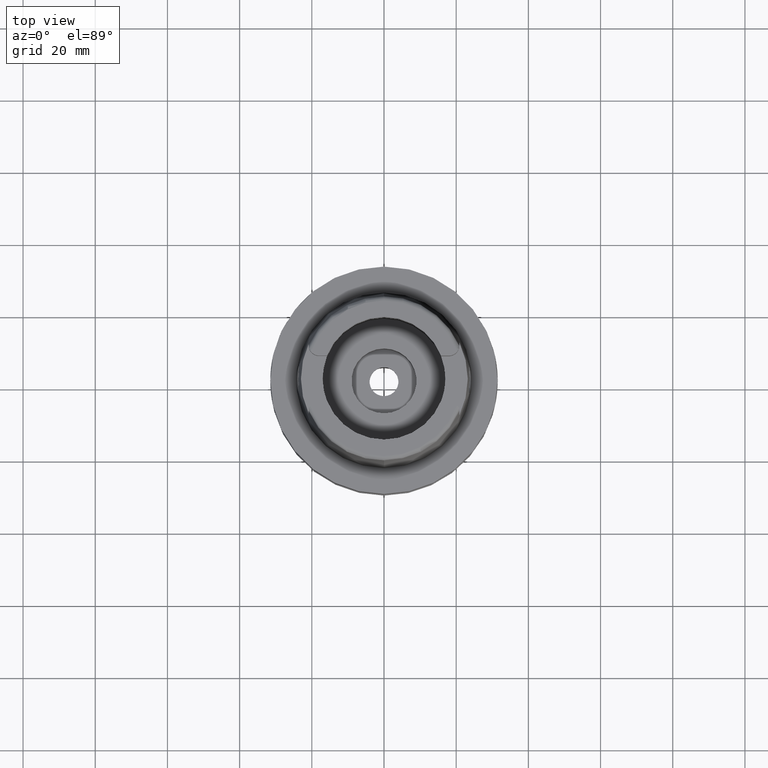
[diagram: clean part render]
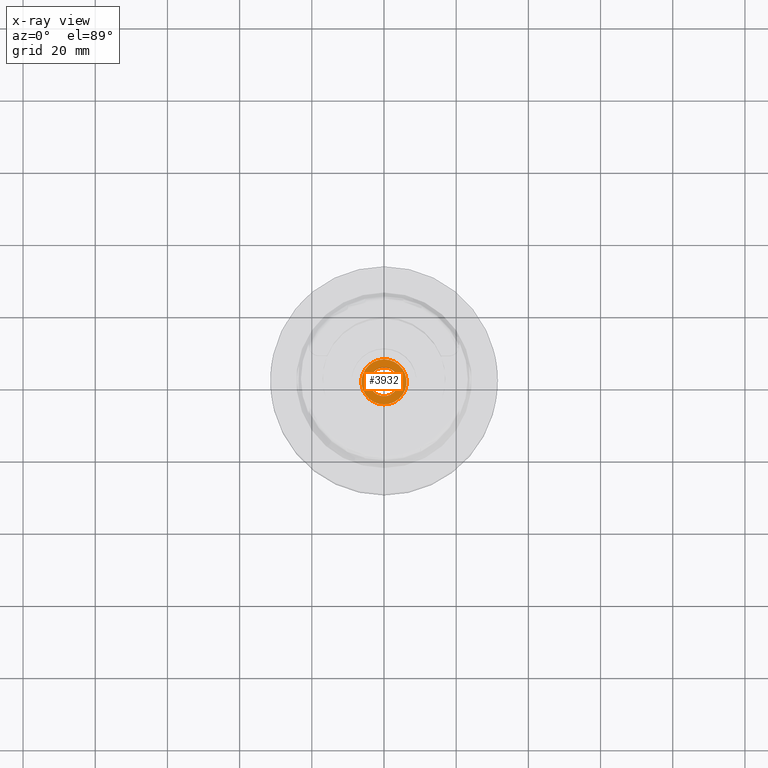
[diagram: x-ray — body ghosted, one internal face saturated and labeled with its STEP entity id]
A machine part, top view, then the same camera in x-ray: the body is ghosted and one INTERNAL B-rep face — a face not visible from any outside direction — is saturated and labeled: STEP entity #3932.
In plain terms, the highlighted planar face has unit normal (0, 0, 1).
Its self-contained STEP definition (entity closure, byte-faithful):
#1865=CARTESIAN_POINT('',(0.E0,0.E0,-2.7E1));
#1866=DIRECTION('',(0.E0,0.E0,1.E0));
#1867=DIRECTION('',(0.E0,-1.E0,0.E0));
#1868=AXIS2_PLACEMENT_3D('',#1865,#1866,#1867);
#1873=CARTESIAN_POINT('',(0.E0,0.E0,-2.7E1));
#1874=DIRECTION('',(0.E0,0.E0,1.E0));
#1875=DIRECTION('',(0.E0,1.E0,0.E0));
#1876=AXIS2_PLACEMENT_3D('',#1873,#1874,#1875);
#1881=CARTESIAN_POINT('',(0.E0,0.E0,-2.7E1));
#1882=DIRECTION('',(0.E0,0.E0,-1.E0));
#1883=DIRECTION('',(0.E0,-1.E0,0.E0));
#1884=AXIS2_PLACEMENT_3D('',#1881,#1882,#1883);
#1889=CARTESIAN_POINT('',(0.E0,0.E0,-2.7E1));
#1890=DIRECTION('',(0.E0,0.E0,-1.E0));
#1891=DIRECTION('',(0.E0,1.E0,0.E0));
#1892=AXIS2_PLACEMENT_3D('',#1889,#1890,#1891);
#2416=CARTESIAN_POINT('',(0.E0,4.E0,-2.7E1));
#2417=VERTEX_POINT('',#2416);
#2418=CARTESIAN_POINT('',(0.E0,-4.E0,-2.7E1));
#2419=VERTEX_POINT('',#2418);
#2420=CARTESIAN_POINT('',(0.E0,-6.25E0,-2.7E1));
#2421=CARTESIAN_POINT('',(0.E0,6.25E0,-2.7E1));
#2422=VERTEX_POINT('',#2420);
#2423=VERTEX_POINT('',#2421);
#3917=CARTESIAN_POINT('',(0.E0,0.E0,-2.7E1));
#3918=DIRECTION('',(0.E0,0.E0,1.E0));
#3919=DIRECTION('',(0.E0,1.E0,0.E0));
#3920=AXIS2_PLACEMENT_3D('',#3917,#3918,#3919);
#3921=PLANE('',#3920);
#3922=ORIENTED_EDGE('',*,*,#3910,.T.);
#3923=ORIENTED_EDGE('',*,*,#3899,.T.);
#3924=EDGE_LOOP('',(#3922,#3923));
#3925=FACE_OUTER_BOUND('',#3924,.F.);
#3927=ORIENTED_EDGE('',*,*,#3926,.T.);
#3929=ORIENTED_EDGE('',*,*,#3928,.T.);
#3930=EDGE_LOOP('',(#3927,#3929));
#3931=FACE_BOUND('',#3930,.F.);
#1869=CIRCLE('',#1868,6.25E0);
#1877=CIRCLE('',#1876,6.25E0);
#1885=CIRCLE('',#1884,4.E0);
#1893=CIRCLE('',#1892,4.E0);
#3899=EDGE_CURVE('',#2423,#2422,#1877,.T.);
#3910=EDGE_CURVE('',#2422,#2423,#1869,.T.);
#3926=EDGE_CURVE('',#2419,#2417,#1885,.T.);
#3928=EDGE_CURVE('',#2417,#2419,#1893,.T.);
#3932=ADVANCED_FACE('',(#3925,#3931),#3921,.F.);